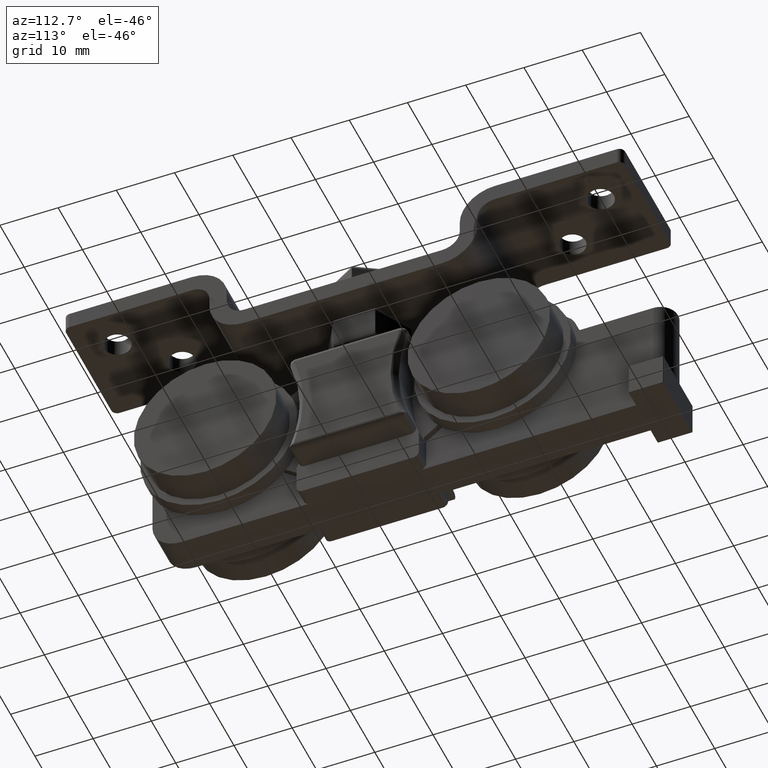
[diagram: clean part render]
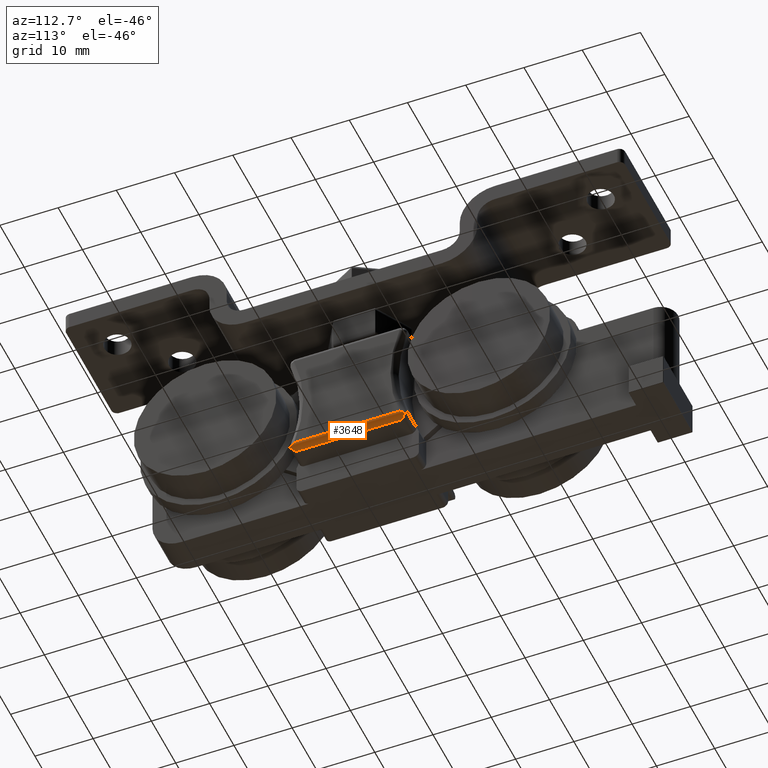
[diagram: same view with one face highlighted and labeled with its STEP entity id]
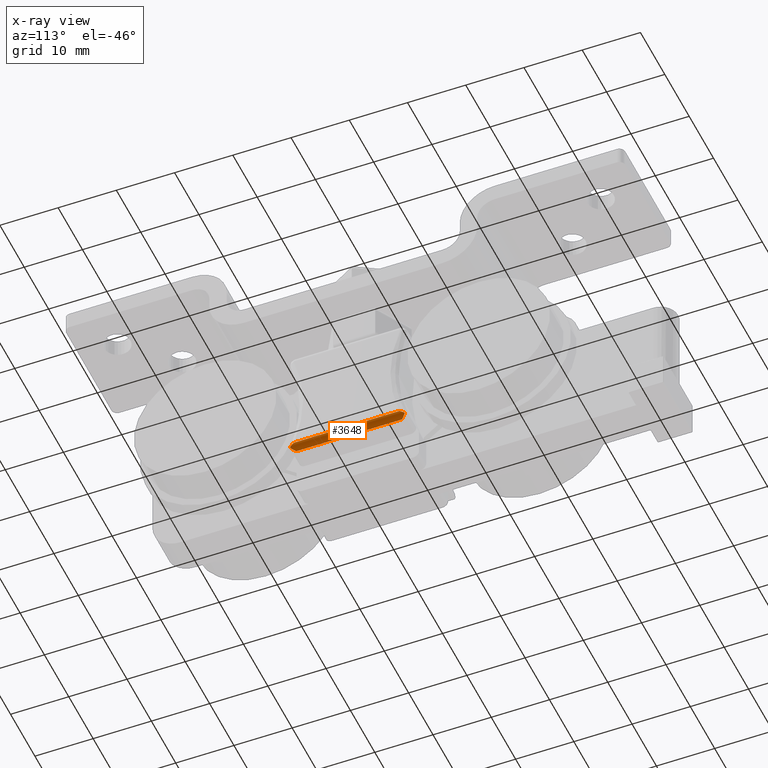
[diagram: x-ray of the same camera — body ghosted, the highlighted face saturated]
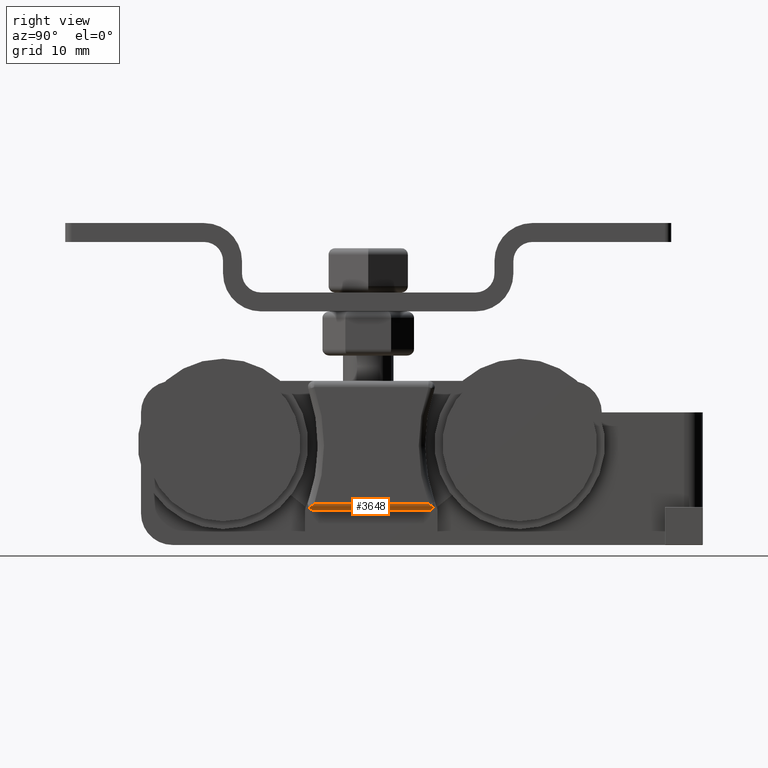
[diagram: same view with one face highlighted and labeled with its STEP entity id]
A machine part, auxiliary view. The second image highlights one B-rep face of the part: STEP entity #3648.
The next image is the same camera in x-ray: the body ghosted, the highlighted face saturated — about 0% of this face is hidden behind the body in this view.
A second angle (right view) of the same face is appended — the face is thin or edge-on in the first view.
In plain terms, the highlighted cylindrical surface (edge-blend (fillet) strip) has radius 1 mm, axis along (0, -1, 0).
Its self-contained STEP definition (entity closure, byte-faithful):
#475=CARTESIAN_POINT('',(10.500000000000000,9.556393325527884,6.500000000000003));
#476=VERTEX_POINT('',#475);
#494=CARTESIAN_POINT('',(10.500000000000000,-8.556393325527864,6.500000000000003));
#495=VERTEX_POINT('',#494);
#503=CARTESIAN_POINT('',(10.500000000000000,-8.556393325527864,6.499999999999997));
#504=DIRECTION('',(0.0,1.0,0.0));
#505=VECTOR('',#504,18.112786651055750);
#506=LINE('',#503,#505);
#507=EDGE_CURVE('',#495,#476,#506,.T.);
#2052=CARTESIAN_POINT('',(9.500000000000000,9.556393325527884,5.500000000000002));
#2053=VERTEX_POINT('',#2052);
#2060=CARTESIAN_POINT('',(9.500000000000000,-8.556393325527864,5.500000000000002));
#2061=VERTEX_POINT('',#2060);
#2062=CARTESIAN_POINT('',(9.500000000000000,9.556393325527886,5.500000000000002));
#2063=DIRECTION('',(0.0,-1.0,0.0));
#2064=VECTOR('',#2063,18.112786651055750);
#2065=LINE('',#2062,#2064);
#2066=EDGE_CURVE('',#2053,#2061,#2065,.T.);
#3459=CARTESIAN_POINT('',(10.318833069740698,10.375226395268594,5.925968290162475));
#3460=VERTEX_POINT('',#3459);
#3461=CARTESIAN_POINT('',(10.500000000000000,9.556393325527884,6.500000000000003));
#3462=CARTESIAN_POINT('',(10.500000000000000,9.694695980880002,6.401545259169592));
#3463=CARTESIAN_POINT('',(10.485520996630818,9.834292783887726,6.302928691490569));
#3464=CARTESIAN_POINT('',(10.426640953039552,10.108319749477385,6.110865987624163));
#3465=CARTESIAN_POINT('',(10.381704798578490,10.245272787119704,6.015652274238390));
#3466=CARTESIAN_POINT('',(10.318833069740698,10.375226395268594,5.925968290162475));
#3467=B_SPLINE_CURVE_WITH_KNOTS('',3,(#3461,#3462,#3463,#3464,#3465,#3466),.UNSPECIFIED.,.F.,.U.,(4,2,4),(-0.000006506221657,0.000502795588384,0.001012097398426),.UNSPECIFIED.);
#3468=EDGE_CURVE('',#476,#3460,#3467,.T.);
#3584=CARTESIAN_POINT('',(10.318833069740698,-9.375226395268587,5.925968290162475));
#3585=VERTEX_POINT('',#3584);
#3597=CARTESIAN_POINT('',(10.318833069740698,-9.375226395268587,5.925968290162475));
#3598=CARTESIAN_POINT('',(10.381701756379563,-9.245279075235690,6.015647934664412));
#3599=CARTESIAN_POINT('',(10.426636622940471,-9.108332876271327,6.110856859828552));
#3600=CARTESIAN_POINT('',(10.485516779359934,-8.834319435423989,6.302909939070981));
#3601=CARTESIAN_POINT('',(10.500000000000000,-8.695744940274093,6.400798527119880));
#3602=CARTESIAN_POINT('',(10.500000000000000,-8.556393325527864,6.500000000000003));
#3603=B_SPLINE_CURVE_WITH_KNOTS('',3,(#3597,#3598,#3599,#3600,#3601,#3602),.UNSPECIFIED.,.F.,.U.,(4,2,4),(0.001180257245766,0.001693421866083,0.002206586486399),.UNSPECIFIED.);
#3604=EDGE_CURVE('',#3585,#495,#3603,.T.);
#3609=CARTESIAN_POINT('',(9.500000000000007,10.375226405268595,6.500000000000004));
#3610=DIRECTION('',(0.0,-1.0,0.0));
#3611=DIRECTION('',(-0.707106781186548,0.0,0.707106781186547));
#3612=AXIS2_PLACEMENT_3D('',#3609,#3610,#3611);
#3613=CYLINDRICAL_SURFACE('',#3612,1.0);
#3614=ORIENTED_EDGE('',*,*,#2066,.F.);
#3615=CARTESIAN_POINT('',(9.500000000000000,9.556393325527884,5.500000000000002));
#3616=CARTESIAN_POINT('',(9.832700620751274,9.889093946279171,5.500000000000002));
#3617=CARTESIAN_POINT('',(10.127852363546850,10.184245689074730,5.653542019568056));
#3618=CARTESIAN_POINT('',(10.318833069740698,10.375226395268594,5.925968290162475));
#3626=(BOUNDED_CURVE()B_SPLINE_CURVE(3,(#3615,#3616,#3617,#3618),.UNSPECIFIED.,.F.,.U.)B_SPLINE_CURVE_WITH_KNOTS((4,4),(1.570796326794897,2.530171520871300),.UNSPECIFIED.)CURVE()GEOMETRIC_REPRESENTATION_ITEM()RATIONAL_B_SPLINE_CURVE((1.0,0.924759427117112,0.924759427117112,1.0))REPRESENTATION_ITEM(''));
#3627=EDGE_CURVE('',#2053,#3460,#3626,.T.);
#3628=ORIENTED_EDGE('',*,*,#3627,.T.);
#3629=ORIENTED_EDGE('',*,*,#3468,.F.);
#3630=ORIENTED_EDGE('',*,*,#507,.F.);
#3631=ORIENTED_EDGE('',*,*,#3604,.F.);
#3632=CARTESIAN_POINT('',(10.318833069740698,-9.375226395268587,5.925968290162475));
#3633=CARTESIAN_POINT('',(10.127852363546857,-9.184245689074707,5.653542019568058));
#3634=CARTESIAN_POINT('',(9.832700620751274,-8.889093946279157,5.500000000000004));
#3635=CARTESIAN_POINT('',(9.500000000000000,-8.556393325527864,5.500000000000002));
#3643=(BOUNDED_CURVE()B_SPLINE_CURVE(3,(#3632,#3633,#3634,#3635),.UNSPECIFIED.,.F.,.U.)B_SPLINE_CURVE_WITH_KNOTS((4,4),(0.611421132718492,1.570796326794897),.UNSPECIFIED.)CURVE()GEOMETRIC_REPRESENTATION_ITEM()RATIONAL_B_SPLINE_CURVE((1.0,0.924759427117112,0.924759427117112,1.0))REPRESENTATION_ITEM(''));
#3644=EDGE_CURVE('',#3585,#2061,#3643,.T.);
#3645=ORIENTED_EDGE('',*,*,#3644,.T.);
#3646=EDGE_LOOP('',(#3614,#3628,#3629,#3630,#3631,#3645));
#3647=FACE_OUTER_BOUND('',#3646,.T.);
#3648=ADVANCED_FACE('',(#3647),#3613,.T.);